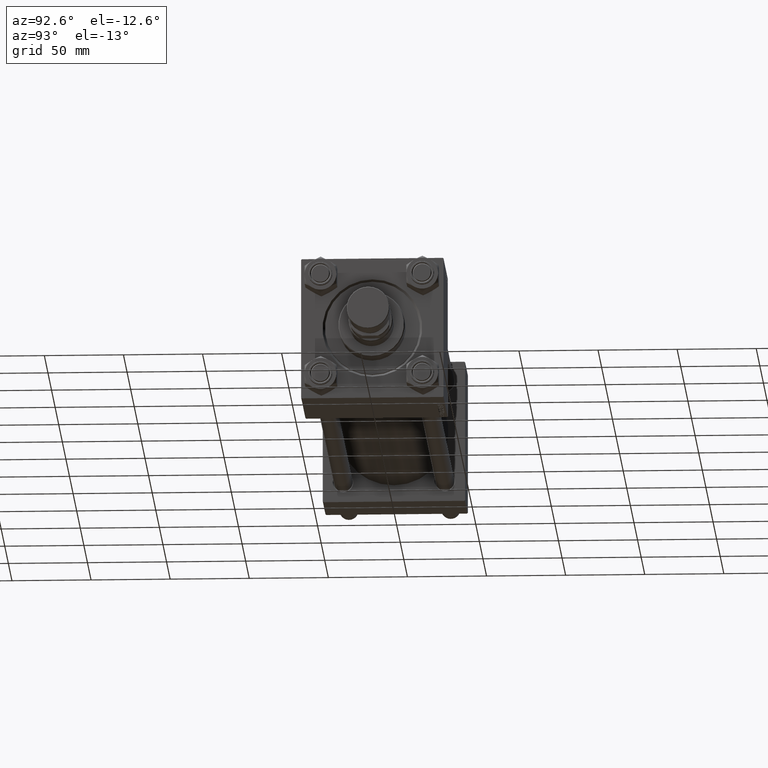
[diagram: clean part render]
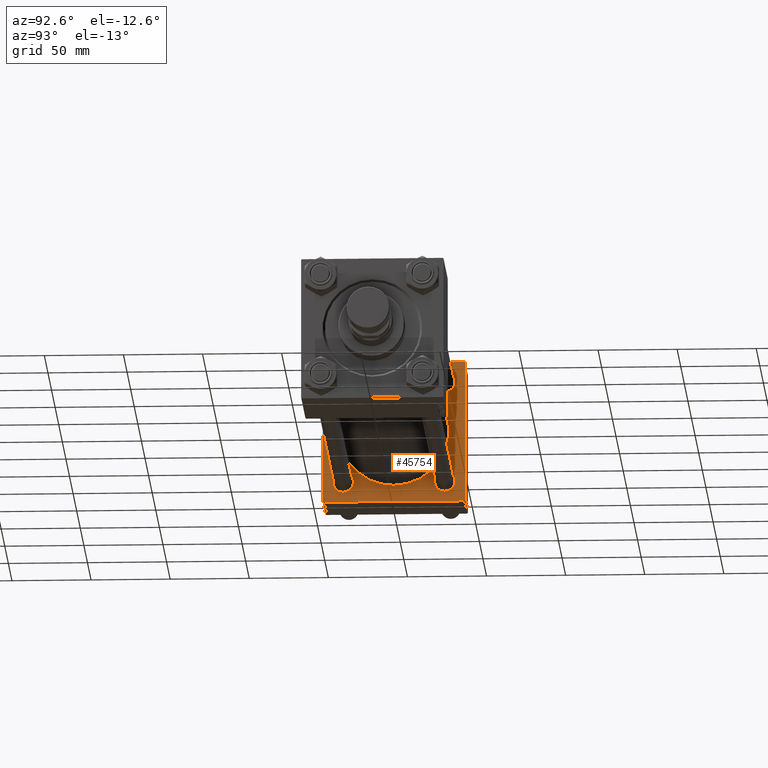
[diagram: same view with one face highlighted and labeled with its STEP entity id]
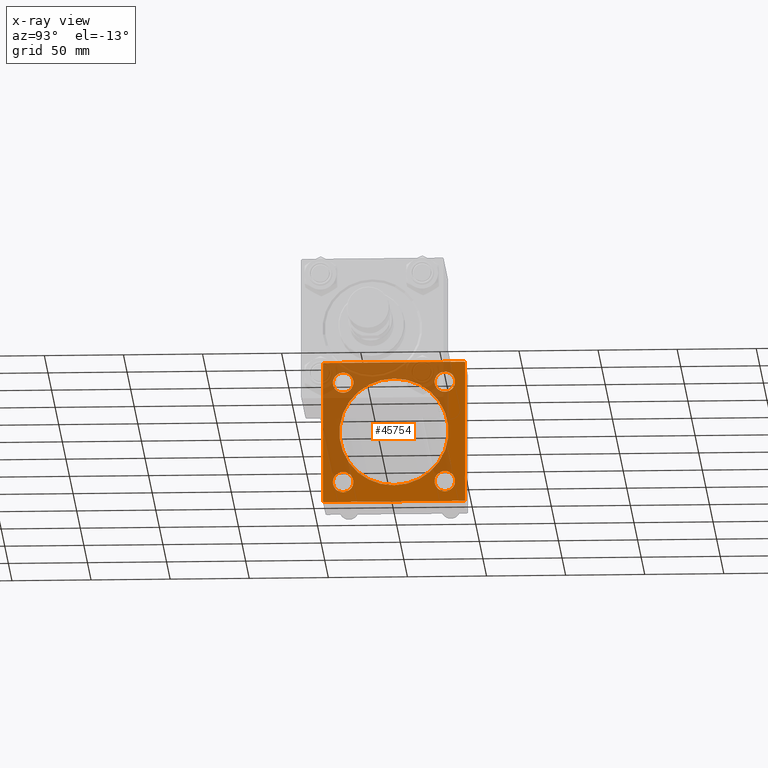
[diagram: x-ray of the same camera — body ghosted, the highlighted face saturated]
A machine part, auxiliary view. The second image highlights one B-rep face of the part: STEP entity #45754.
The next image is the same camera in x-ray: the body ghosted, the highlighted face saturated — about 49% of this face is hidden behind the body in this view.
In plain terms, the highlighted planar face has unit normal (-1, 0, 0).
Its self-contained STEP definition (entity closure, byte-faithful):
#1458 = VECTOR ( 'NONE', #20787, 1000.000000000000114 ) ;
#1697 = EDGE_LOOP ( 'NONE', ( #43996, #14460 ) ) ;
#1716 = EDGE_CURVE ( 'NONE', #4721, #38570, #10113, .T. ) ;
#1762 = EDGE_CURVE ( 'NONE', #18699, #26500, #6860, .T. ) ;
#1904 = DIRECTION ( 'NONE',  ( -1.000000000000000000, 0.000000000000000000, -0.000000000000000000 ) ) ;
#2195 = CARTESIAN_POINT ( 'NONE',  ( 37.00000000000000000, -45.00000000000000711, 45.00000000000000000 ) ) ;
#2304 = CIRCLE ( 'NONE', #6386, 6.499999999999977796 ) ;
#2660 = PLANE ( 'NONE',  #16194 ) ;
#2930 = VERTEX_POINT ( 'NONE', #16478 ) ;
#4178 = EDGE_CURVE ( 'NONE', #5077, #38638, #35983, .T. ) ;
#4299 = LINE ( 'NONE', #19782, #1458 ) ;
#4480 = LINE ( 'NONE', #35199, #30744 ) ;
#4611 = VERTEX_POINT ( 'NONE', #7243 ) ;
#4721 = VERTEX_POINT ( 'NONE', #19146 ) ;
#5077 = VERTEX_POINT ( 'NONE', #29713 ) ;
#5270 = ORIENTED_EDGE ( 'NONE', *, *, #41447, .T. ) ;
#5336 = VERTEX_POINT ( 'NONE', #49779 ) ;
#5737 = FACE_BOUND ( 'NONE', #6022, .T. ) ;
#5896 = LINE ( 'NONE', #17555, #28560 ) ;
#6022 = EDGE_LOOP ( 'NONE', ( #50134, #29008 ) ) ;
#6136 = AXIS2_PLACEMENT_3D ( 'NONE', #45229, #10940, #25417 ) ;
#6158 = CARTESIAN_POINT ( 'NONE',  ( 37.00000000000000000, -32.14999999999997726, 25.65000000000003411 ) ) ;
#6386 = AXIS2_PLACEMENT_3D ( 'NONE', #27583, #8066, #39040 ) ;
#6481 = EDGE_CURVE ( 'NONE', #26500, #18699, #31228, .T. ) ;
#6501 = DIRECTION ( 'NONE',  ( -1.000000000000000000, 0.000000000000000000, -0.000000000000000000 ) ) ;
#6713 = DIRECTION ( 'NONE',  ( 0.000000000000000000, 0.000000000000000000, 1.000000000000000000 ) ) ;
#6860 = CIRCLE ( 'NONE', #14159, 6.499999999999977796 ) ;
#6940 = DIRECTION ( 'NONE',  ( 0.000000000000000000, 0.000000000000000000, 1.000000000000000000 ) ) ;
#7116 = CARTESIAN_POINT ( 'NONE',  ( 37.00000000000000000, 44.99999999999998579, -44.49999999999995737 ) ) ;
#7243 = CARTESIAN_POINT ( 'NONE',  ( 37.00000000000000000, -44.49999999999995737, -45.00000000000000000 ) ) ;
#7297 = CARTESIAN_POINT ( 'NONE',  ( 37.00000000000000711, 0.000000000000000000, 34.49999999999999289 ) ) ;
#8066 = DIRECTION ( 'NONE',  ( -1.000000000000000000, 0.000000000000000000, -0.000000000000000000 ) ) ;
#8094 = EDGE_LOOP ( 'NONE', ( #5270, #12374 ) ) ;
#8868 = ORIENTED_EDGE ( 'NONE', *, *, #30822, .F. ) ;
#9311 = CIRCLE ( 'NONE', #20639, 6.499999999999977796 ) ;
#9795 = CARTESIAN_POINT ( 'NONE',  ( 37.00000000000000000, 0.000000000000000000, 0.000000000000000000 ) ) ;
#10113 = CIRCLE ( 'NONE', #38490, 34.49999999999999289 ) ;
#10169 = CARTESIAN_POINT ( 'NONE',  ( 37.00000000000000000, -32.14999999999997726, -25.65000000000003411 ) ) ;
#10377 = ORIENTED_EDGE ( 'NONE', *, *, #12612, .T. ) ;
#10940 = DIRECTION ( 'NONE',  ( -1.000000000000000000, 0.000000000000000000, -0.000000000000000000 ) ) ;
#11620 = DIRECTION ( 'NONE',  ( 0.000000000000000000, -1.000000000000000000, -1.541976423090495387E-16 ) ) ;
#11718 = CARTESIAN_POINT ( 'NONE',  ( 37.00000000000000000, 32.14999999999999147, 32.15000000000000568 ) ) ;
#11929 = LINE ( 'NONE', #31977, #15924 ) ;
#12374 = ORIENTED_EDGE ( 'NONE', *, *, #19468, .T. ) ;
#12538 = CARTESIAN_POINT ( 'NONE',  ( 37.00000000000000711, 0.000000000000000000, 0.000000000000000000 ) ) ;
#12612 = EDGE_CURVE ( 'NONE', #24207, #23803, #4299, .T. ) ;
#12853 = CARTESIAN_POINT ( 'NONE',  ( 37.00000000000000000, 44.99999999999998579, -44.99999999999998579 ) ) ;
#13540 = CIRCLE ( 'NONE', #37871, 6.499999999999977796 ) ;
#13591 = FACE_OUTER_BOUND ( 'NONE', #36773, .T. ) ;
#13840 = FACE_BOUND ( 'NONE', #1697, .T. ) ;
#14159 = AXIS2_PLACEMENT_3D ( 'NONE', #11718, #23150, #19838 ) ;
#14307 = EDGE_CURVE ( 'NONE', #2930, #19685, #2304, .T. ) ;
#14460 = ORIENTED_EDGE ( 'NONE', *, *, #25312, .T. ) ;
#15306 = CARTESIAN_POINT ( 'NONE',  ( 37.00000000000000000, 32.14999999999999147, 38.64999999999998437 ) ) ;
#15368 = CIRCLE ( 'NONE', #25931, 6.499999999999977796 ) ;
#15403 = VECTOR ( 'NONE', #11620, 1000.000000000000000 ) ;
#15924 = VECTOR ( 'NONE', #43158, 1000.000000000000114 ) ;
#16194 = AXIS2_PLACEMENT_3D ( 'NONE', #9795, #1904, #25513 ) ;
#16395 = CARTESIAN_POINT ( 'NONE',  ( 37.00000000000000000, 44.49999999999998579, 45.00000000000001421 ) ) ;
#16478 = CARTESIAN_POINT ( 'NONE',  ( 37.00000000000000000, -32.14999999999997726, 38.64999999999999147 ) ) ;
#16648 = DIRECTION ( 'NONE',  ( 0.000000000000000000, 0.000000000000000000, -1.000000000000000000 ) ) ;
#16846 = VERTEX_POINT ( 'NONE', #34858 ) ;
#17102 = CARTESIAN_POINT ( 'NONE',  ( 37.00000000000000000, -32.14999999999997726, -32.15000000000001279 ) ) ;
#17555 = CARTESIAN_POINT ( 'NONE',  ( 37.00000000000000000, -45.00000000000000711, 44.49999999999997158 ) ) ;
#17573 = VERTEX_POINT ( 'NONE', #50243 ) ;
#17647 = FACE_BOUND ( 'NONE', #18481, .T. ) ;
#17683 = LINE ( 'NONE', #2195, #27540 ) ;
#17907 = CARTESIAN_POINT ( 'NONE',  ( 37.00000000000000000, -44.49999999999995737, 45.00000000000000000 ) ) ;
#17934 = DIRECTION ( 'NONE',  ( 0.000000000000000000, 7.709882115452476934E-17, -1.000000000000000000 ) ) ;
#18114 = CARTESIAN_POINT ( 'NONE',  ( 37.00000000000000000, -32.14999999999997726, -32.15000000000001279 ) ) ;
#18481 = EDGE_LOOP ( 'NONE', ( #39459, #33516 ) ) ;
#18649 = ORIENTED_EDGE ( 'NONE', *, *, #4178, .T. ) ;
#18699 = VERTEX_POINT ( 'NONE', #27966 ) ;
#18938 = ORIENTED_EDGE ( 'NONE', *, *, #35930, .T. ) ;
#18993 = LINE ( 'NONE', #26601, #15403 ) ;
#19146 = CARTESIAN_POINT ( 'NONE',  ( 37.00000000000000711, 4.225031457058367344E-15, -34.49999999999999289 ) ) ;
#19468 = EDGE_CURVE ( 'NONE', #28745, #28501, #9311, .T. ) ;
#19685 = VERTEX_POINT ( 'NONE', #6158 ) ;
#19782 = CARTESIAN_POINT ( 'NONE',  ( 37.00000000000000000, 44.99999999999998579, -44.49999999999998579 ) ) ;
#19838 = DIRECTION ( 'NONE',  ( 0.000000000000000000, 0.000000000000000000, 1.000000000000000000 ) ) ;
#20639 = AXIS2_PLACEMENT_3D ( 'NONE', #18114, #33615, #36422 ) ;
#20787 = DIRECTION ( 'NONE',  ( -0.000000000000000000, 0.7071067811865474617, 0.7071067811865474617 ) ) ;
#21059 = DIRECTION ( 'NONE',  ( 0.000000000000000000, 0.000000000000000000, 1.000000000000000000 ) ) ;
#21565 = DIRECTION ( 'NONE',  ( -1.000000000000000000, 0.000000000000000000, -0.000000000000000000 ) ) ;
#23150 = DIRECTION ( 'NONE',  ( -1.000000000000000000, 0.000000000000000000, -0.000000000000000000 ) ) ;
#23389 = ORIENTED_EDGE ( 'NONE', *, *, #31096, .F. ) ;
#23428 = AXIS2_PLACEMENT_3D ( 'NONE', #12538, #46586, #23964 ) ;
#23458 = EDGE_CURVE ( 'NONE', #29015, #4611, #11929, .T. ) ;
#23803 = VERTEX_POINT ( 'NONE', #7116 ) ;
#23964 = DIRECTION ( 'NONE',  ( 0.000000000000000000, 0.000000000000000000, 1.000000000000000000 ) ) ;
#24207 = VERTEX_POINT ( 'NONE', #44261 ) ;
#24612 = CARTESIAN_POINT ( 'NONE',  ( 37.00000000000000000, -32.14999999999997726, 32.15000000000001279 ) ) ;
#24768 = FACE_BOUND ( 'NONE', #8094, .T. ) ;
#25061 = CIRCLE ( 'NONE', #23428, 34.49999999999999289 ) ;
#25249 = VERTEX_POINT ( 'NONE', #17907 ) ;
#25312 = EDGE_CURVE ( 'NONE', #5336, #17573, #13540, .T. ) ;
#25417 = DIRECTION ( 'NONE',  ( 0.000000000000000000, 0.000000000000000000, 1.000000000000000000 ) ) ;
#25513 = DIRECTION ( 'NONE',  ( -0.000000000000000000, 0.000000000000000000, 1.000000000000000000 ) ) ;
#25771 = CARTESIAN_POINT ( 'NONE',  ( 37.00000000000000000, 32.14999999999999147, -32.15000000000000568 ) ) ;
#25931 = AXIS2_PLACEMENT_3D ( 'NONE', #25985, #41482, #6713 ) ;
#25985 = CARTESIAN_POINT ( 'NONE',  ( 37.00000000000000000, 32.14999999999999147, -32.15000000000000568 ) ) ;
#26500 = VERTEX_POINT ( 'NONE', #15306 ) ;
#26601 = CARTESIAN_POINT ( 'NONE',  ( 37.00000000000000000, 44.99999999999998579, 45.00000000000001421 ) ) ;
#27396 = VECTOR ( 'NONE', #28335, 1000.000000000000000 ) ;
#27540 = VECTOR ( 'NONE', #17934, 1000.000000000000000 ) ;
#27583 = CARTESIAN_POINT ( 'NONE',  ( 37.00000000000000000, -32.14999999999997726, 32.15000000000001279 ) ) ;
#27966 = CARTESIAN_POINT ( 'NONE',  ( 37.00000000000000000, 32.14999999999999147, 25.65000000000002700 ) ) ;
#28121 = CARTESIAN_POINT ( 'NONE',  ( 37.00000000000000000, -45.00000000000000000, -44.49999999999995737 ) ) ;
#28335 = DIRECTION ( 'NONE',  ( 0.000000000000000000, -1.000000000000000000, -1.541976423090495633E-16 ) ) ;
#28501 = VERTEX_POINT ( 'NONE', #40200 ) ;
#28560 = VECTOR ( 'NONE', #48550, 1000.000000000000114 ) ;
#28745 = VERTEX_POINT ( 'NONE', #10169 ) ;
#29008 = ORIENTED_EDGE ( 'NONE', *, *, #6481, .T. ) ;
#29015 = VERTEX_POINT ( 'NONE', #28121 ) ;
#29713 = CARTESIAN_POINT ( 'NONE',  ( 37.00000000000000000, 44.99999999999998579, 44.50000000000001421 ) ) ;
#29829 = DIRECTION ( 'NONE',  ( 0.000000000000000000, 0.000000000000000000, 1.000000000000000000 ) ) ;
#30744 = VECTOR ( 'NONE', #16648, 1000.000000000000000 ) ;
#30822 = EDGE_CURVE ( 'NONE', #5077, #23803, #4480, .T. ) ;
#31096 = EDGE_CURVE ( 'NONE', #38570, #4721, #25061, .T. ) ;
#31228 = CIRCLE ( 'NONE', #6136, 6.499999999999977796 ) ;
#31673 = EDGE_CURVE ( 'NONE', #24207, #4611, #47651, .T. ) ;
#31977 = CARTESIAN_POINT ( 'NONE',  ( 37.00000000000000000, -44.49999999999998579, -45.00000000000000000 ) ) ;
#33516 = ORIENTED_EDGE ( 'NONE', *, *, #14307, .T. ) ;
#33615 = DIRECTION ( 'NONE',  ( -1.000000000000000000, 0.000000000000000000, -0.000000000000000000 ) ) ;
#34858 = CARTESIAN_POINT ( 'NONE',  ( 37.00000000000000000, -45.00000000000000711, 44.49999999999997158 ) ) ;
#35199 = CARTESIAN_POINT ( 'NONE',  ( 37.00000000000000000, 44.99999999999998579, 45.00000000000001421 ) ) ;
#35655 = DIRECTION ( 'NONE',  ( -1.000000000000000000, 0.000000000000000000, -0.000000000000000000 ) ) ;
#35758 = EDGE_CURVE ( 'NONE', #38638, #25249, #18993, .T. ) ;
#35930 = EDGE_CURVE ( 'NONE', #16846, #29015, #17683, .T. ) ;
#35983 = LINE ( 'NONE', #39799, #35985 ) ;
#35985 = VECTOR ( 'NONE', #36233, 1000.000000000000114 ) ;
#36233 = DIRECTION ( 'NONE',  ( 0.000000000000000000, -0.7071067811865474617, 0.7071067811865474617 ) ) ;
#36422 = DIRECTION ( 'NONE',  ( 0.000000000000000000, 0.000000000000000000, 1.000000000000000000 ) ) ;
#36445 = EDGE_CURVE ( 'NONE', #17573, #5336, #15368, .T. ) ;
#36662 = CIRCLE ( 'NONE', #38289, 6.499999999999977796 ) ;
#36773 = EDGE_LOOP ( 'NONE', ( #40063, #10377, #8868, #18649, #49850, #45130, #18938, #37562 ) ) ;
#37041 = ORIENTED_EDGE ( 'NONE', *, *, #1716, .F. ) ;
#37562 = ORIENTED_EDGE ( 'NONE', *, *, #23458, .T. ) ;
#37871 = AXIS2_PLACEMENT_3D ( 'NONE', #25771, #6501, #29829 ) ;
#38289 = AXIS2_PLACEMENT_3D ( 'NONE', #17102, #35655, #43521 ) ;
#38396 = CARTESIAN_POINT ( 'NONE',  ( 37.00000000000000711, 0.000000000000000000, 0.000000000000000000 ) ) ;
#38490 = AXIS2_PLACEMENT_3D ( 'NONE', #38396, #41209, #6940 ) ;
#38570 = VERTEX_POINT ( 'NONE', #7297 ) ;
#38638 = VERTEX_POINT ( 'NONE', #16395 ) ;
#39005 = CIRCLE ( 'NONE', #44664, 6.499999999999977796 ) ;
#39040 = DIRECTION ( 'NONE',  ( 0.000000000000000000, 0.000000000000000000, 1.000000000000000000 ) ) ;
#39459 = ORIENTED_EDGE ( 'NONE', *, *, #47865, .T. ) ;
#39799 = CARTESIAN_POINT ( 'NONE',  ( 37.00000000000000000, 44.49999999999998579, 45.00000000000001421 ) ) ;
#40063 = ORIENTED_EDGE ( 'NONE', *, *, #31673, .F. ) ;
#40200 = CARTESIAN_POINT ( 'NONE',  ( 37.00000000000000000, -32.14999999999997726, -38.64999999999999147 ) ) ;
#41209 = DIRECTION ( 'NONE',  ( 1.000000000000000000, -0.000000000000000000, 0.000000000000000000 ) ) ;
#41369 = EDGE_LOOP ( 'NONE', ( #23389, #37041 ) ) ;
#41447 = EDGE_CURVE ( 'NONE', #28501, #28745, #36662, .T. ) ;
#41482 = DIRECTION ( 'NONE',  ( -1.000000000000000000, 0.000000000000000000, -0.000000000000000000 ) ) ;
#41901 = EDGE_CURVE ( 'NONE', #25249, #16846, #5896, .T. ) ;
#43158 = DIRECTION ( 'NONE',  ( 0.000000000000000000, 0.7071067811865474617, -0.7071067811865474617 ) ) ;
#43521 = DIRECTION ( 'NONE',  ( 0.000000000000000000, 0.000000000000000000, 1.000000000000000000 ) ) ;
#43996 = ORIENTED_EDGE ( 'NONE', *, *, #36445, .T. ) ;
#44261 = CARTESIAN_POINT ( 'NONE',  ( 37.00000000000000000, 44.49999999999998579, -44.99999999999998579 ) ) ;
#44569 = FACE_BOUND ( 'NONE', #41369, .T. ) ;
#44664 = AXIS2_PLACEMENT_3D ( 'NONE', #24612, #21565, #21059 ) ;
#45130 = ORIENTED_EDGE ( 'NONE', *, *, #41901, .T. ) ;
#45229 = CARTESIAN_POINT ( 'NONE',  ( 37.00000000000000000, 32.14999999999999147, 32.15000000000000568 ) ) ;
#45754 = ADVANCED_FACE ( 'NONE', ( #24768, #13840, #17647, #5737, #44569, #13591 ), #2660, .F. ) ;
#46586 = DIRECTION ( 'NONE',  ( 1.000000000000000000, -0.000000000000000000, 0.000000000000000000 ) ) ;
#47651 = LINE ( 'NONE', #12853, #27396 ) ;
#47865 = EDGE_CURVE ( 'NONE', #19685, #2930, #39005, .T. ) ;
#48550 = DIRECTION ( 'NONE',  ( -0.000000000000000000, -0.7071067811865425767, -0.7071067811865524577 ) ) ;
#49779 = CARTESIAN_POINT ( 'NONE',  ( 37.00000000000000000, 32.14999999999999147, -25.65000000000002700 ) ) ;
#49850 = ORIENTED_EDGE ( 'NONE', *, *, #35758, .T. ) ;
#50134 = ORIENTED_EDGE ( 'NONE', *, *, #1762, .T. ) ;
#50243 = CARTESIAN_POINT ( 'NONE',  ( 37.00000000000000000, 32.14999999999999147, -38.64999999999998437 ) ) ;